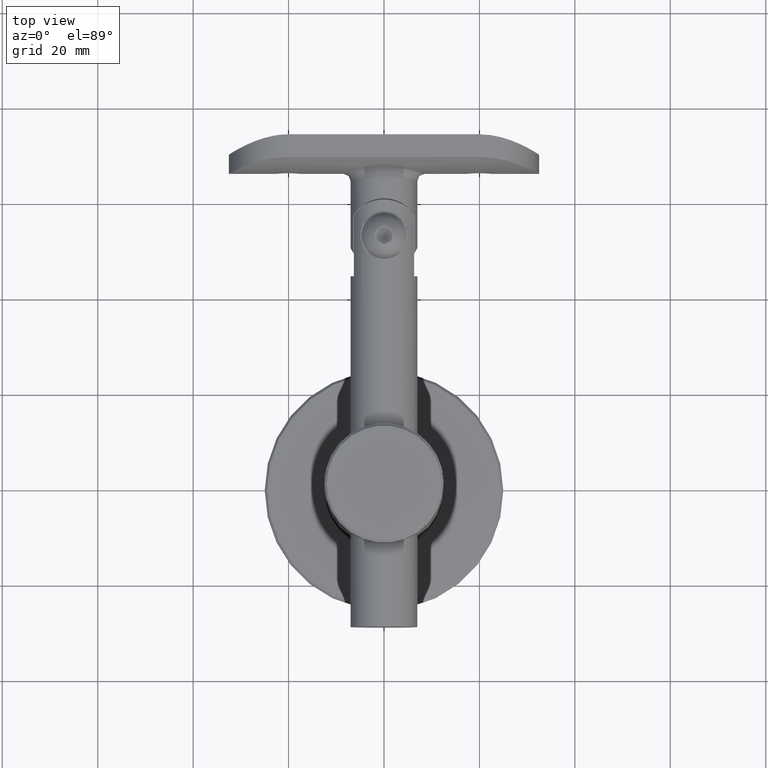
[diagram: clean part render]
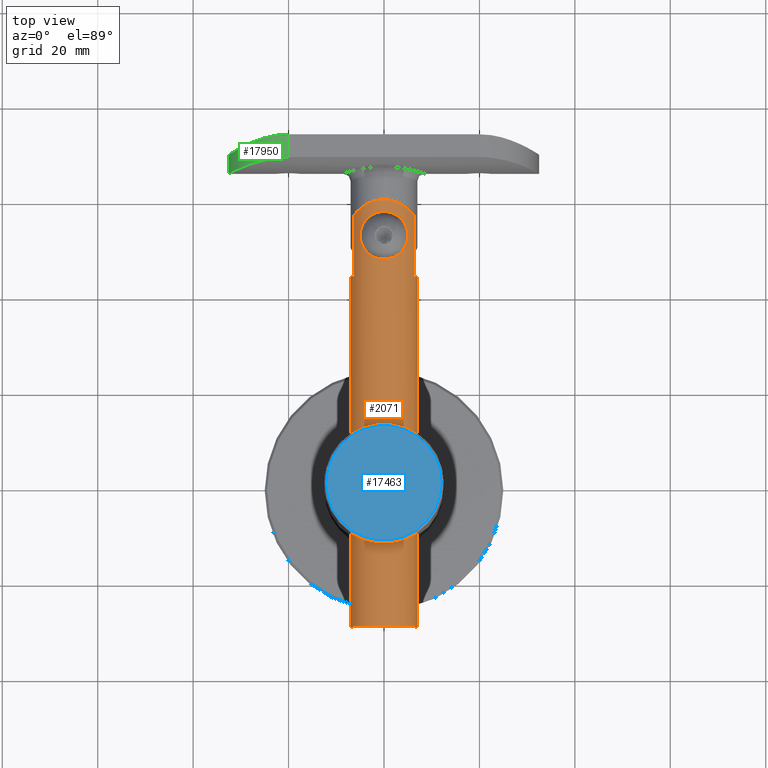
[diagram: same view with three faces highlighted in distinct colors, each labeled with its STEP entity id]
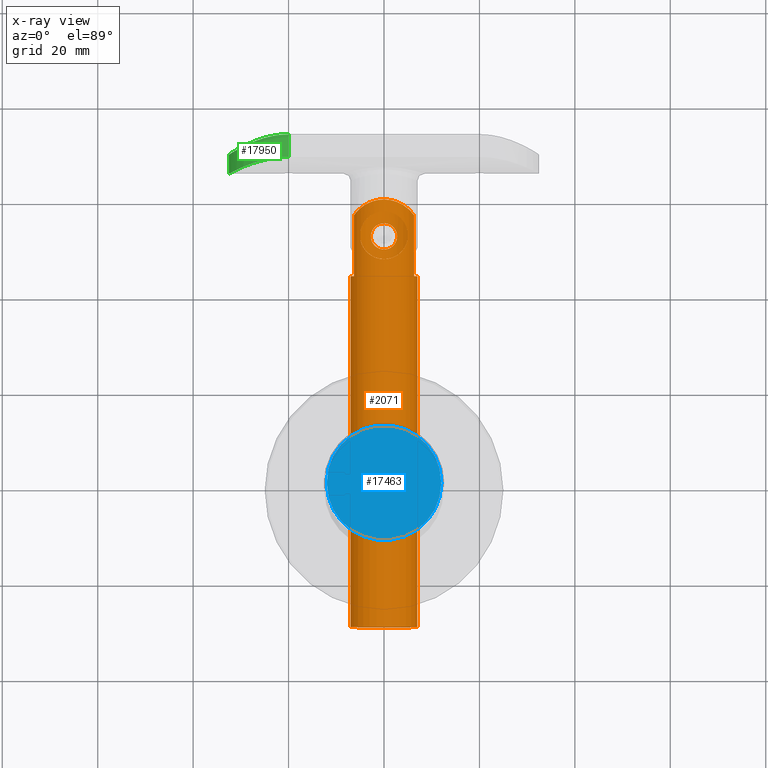
[diagram: x-ray of the same camera — body ghosted, the three highlighted faces saturated]
A machine part, top view with three faces highlighted in distinct colors.
The next image is the same camera in x-ray (body ghosted, the three faces saturated) — at least one of them is partly hidden behind the body in this view.
Their STEP definitions:

[orange] entity #2071 — the highlighted cylindrical surface (bore or boss wall) has radius 7 mm, axis along (-0, -1, -0).
#13 = CARTESIAN_POINT ( 'NONE',  ( -0.8934201700715390700, 84.60705001422599000, -6.944785510654292600 ) ) ;
#19 = CARTESIAN_POINT ( 'NONE',  ( -6.324555320336756400, 73.50000000000000000, -3.000000000000000000 ) ) ;
#34 = CARTESIAN_POINT ( 'NONE',  ( -3.614905331433776700, 78.53470914144381300, 5.998164343327515800 ) ) ;
#58 = CARTESIAN_POINT ( 'NONE',  ( -6.324555320336758200, 86.22911821679221600, -3.000000000000001800 ) ) ;
#86 = CARTESIAN_POINT ( 'NONE',  ( 1.678690237137759000, 79.81453093522000600, -6.797428388528597800 ) ) ;
#128 = CARTESIAN_POINT ( 'NONE',  ( -4.203674794888591700, 88.26828322984172800, -5.606578853813122300 ) ) ;
#270 = CARTESIAN_POINT ( 'NONE',  ( 1.760796681566904300, 89.29939510958931200, -6.777254525242627300 ) ) ;
#281 = CARTESIAN_POINT ( 'NONE',  ( -4.898979485566356700, 82.99999999999998600, 4.999999999999999100 ) ) ;
#347 = CARTESIAN_POINT ( 'NONE',  ( 3.614905331433776700, 85.46529085855618700, 5.998164343327515800 ) ) ;
#460 = EDGE_CURVE ( 'NONE', #10580, #18762, #19397, .T. ) ;
#555 = ORIENTED_EDGE ( 'NONE', *, *, #1925, .T. ) ;
#557 = CARTESIAN_POINT ( 'NONE',  ( -0.3075841348478602900, 86.99946705965081200, 6.999619328607963100 ) ) ;
#709 = DIRECTION ( 'NONE',  ( -0.0000000000000000000, -1.000000000000000000, -0.0000000000000000000 ) ) ;
#745 = ORIENTED_EDGE ( 'NONE', *, *, #18040, .T. ) ;
#782 = EDGE_CURVE ( 'NONE', #6335, #11942, #6940, .T. ) ;
#791 = CARTESIAN_POINT ( 'NONE',  ( 6.324555320336752800, 73.50000000000000000, 2.999999999999998200 ) ) ;
#1006 = CARTESIAN_POINT ( 'NONE',  ( 4.199224853540028100, 88.27119367124032600, 5.609963623605692000 ) ) ;
#1038 = B_SPLINE_CURVE_WITH_KNOTS ( 'NONE', 3,
 ( #6231, #6300, #11105, #12897, #13, #20592, #17443, #12831, #7785, #17512, #9544, #20665, #20734, #1544, #3237, #14444, #7923, #12771, #4752, #16040, #15906, #6370, #4826, #11302, #1475, #17584, #6444, #9693, #18997, #14509, #12633, #14243, #3304, #4683, #17662, #8068, #12701, #86, #11032, #9406, #7857, #3099, #1405, #3023, #4616, #16250, #14788, #13040, #18018, #2035, #6661, #9756, #3662, #9965, #16314, #6796, #9821, #11507, #1890, #11440, #5102, #17881 ),
 .UNSPECIFIED., .T., .F.,
 ( 4, 2, 2, 2, 2, 2, 2, 2, 2, 2, 2, 2, 2, 2, 2, 2, 2, 2, 2, 2, 2, 2, 2, 2, 2, 2, 2, 2, 2, 2, 4 ),
 ( 0.0000000000000000000, 0.0005426679904109459000, 0.001085335980821891800, 0.001628003971232837700, 0.002170671961643783600, 0.003256007942465674500, 0.003798675932876619800, 0.004341343923287565400, 0.004884011913698511600, 0.005426679904109456800, 0.005969347894520402900, 0.006512015884931349000, 0.007054683875342295100, 0.007597351865753240400, 0.008140019856164186500, 0.008682687846575132600, 0.009225355836986078700, 0.009768023827397024800, 0.01031069181780797100, 0.01085335980821891500, 0.01139602779862986100, 0.01193869578904080800, 0.01248136377945175400, 0.01302403176986270000, 0.01356669976027364600, 0.01410936775068459200, 0.01465203574109553800, 0.01519470373150648200, 0.01573737172191742900, 0.01628003971232837600, 0.01736537569315026900 ),
 .UNSPECIFIED. ) ;
#1197 = ORIENTED_EDGE ( 'NONE', *, *, #782, .T. ) ;
#1209 = CARTESIAN_POINT ( 'NONE',  ( 6.060285792426122400, 86.60226917371140600, 3.557129082916704800 ) ) ;
#1349 = CARTESIAN_POINT ( 'NONE',  ( -1.769915728430260700, 89.30326962258362800, 6.781712032869050300 ) ) ;
#1359 = CARTESIAN_POINT ( 'NONE',  ( 6.324555320336757300, 92.00000000000000000, 3.000000000000000000 ) ) ;
#1405 = CARTESIAN_POINT ( 'NONE',  ( 2.468051694380037500, 80.77378078093845200, -6.550897895195269900 ) ) ;
#1411 = CARTESIAN_POINT ( 'NONE',  ( -5.529349794834750800, 87.18737894610852400, 4.303714351459682100 ) ) ;
#1435 = CARTESIAN_POINT ( 'NONE',  ( 0.0000000000000000000, 0.0000000000000000000, 6.999999999999999100 ) ) ;
#1475 = CARTESIAN_POINT ( 'NONE',  ( -1.682963870502190100, 79.81777303405209500, -6.796379002353479100 ) ) ;
#1480 = CARTESIAN_POINT ( 'NONE',  ( -6.324555320336759900, 86.22911821679221600, 2.999999999999997300 ) ) ;
#1544 = CARTESIAN_POINT ( 'NONE',  ( -2.731778752556962300, 82.36440252293115800, -6.445066868859143500 ) ) ;
#1595 = CARTESIAN_POINT ( 'NONE',  ( -1.795446388815784300, 89.29703466220864500, -6.774766342545606600 ) ) ;
#1622 = CARTESIAN_POINT ( 'NONE',  ( -6.192264615893467500, 86.41591388462727300, 3.278893292872632000 ) ) ;
#1635 = CARTESIAN_POINT ( 'NONE',  ( -3.973478704353192700, 78.95250130833937900, 5.766886771113650700 ) ) ;
#1721 = CARTESIAN_POINT ( 'NONE',  ( 6.324555320336758200, 86.22911821679221600, -3.000000000000001800 ) ) ;
#1772 = CARTESIAN_POINT ( 'NONE',  ( -4.548511329816598400, 79.90433365806386200, 5.322635898918067100 ) ) ;
#1790 = DIRECTION ( 'NONE',  ( -0.0000000000000000000, -1.000000000000000000, -0.0000000000000000000 ) ) ;
#1864 = CARTESIAN_POINT ( 'NONE',  ( 2.436208839625645200, 89.11537843722753400, -6.571796790168397400 ) ) ;
#1878 = CARTESIAN_POINT ( 'NONE',  ( 4.421977009742368700, 84.35014470591239900, 5.429462876628999600 ) ) ;
#1890 = CARTESIAN_POINT ( 'NONE',  ( 1.228763892797353000, 84.46688112587470700, -6.893385524380597900 ) ) ;
#1925 = EDGE_CURVE ( 'NONE', #20475, #20475, #1038, .T. ) ;
#2035 = CARTESIAN_POINT ( 'NONE',  ( 2.661337149544327200, 82.71628721917572600, -6.474471173527214200 ) ) ;
#2071 = ADVANCED_FACE ( 'NONE', ( #20441, #2400, #18949, #16178 ), #8671, .T. ) ;
#2095 = CARTESIAN_POINT ( 'NONE',  ( 1.172527317746819200, 86.86969451860673500, 6.907427810759569000 ) ) ;
#2168 = CARTESIAN_POINT ( 'NONE',  ( 2.004173547763659100, 86.58994197997024900, 6.712845311740686300 ) ) ;
#2201 = ORIENTED_EDGE ( 'NONE', *, *, #10532, .T. ) ;
#2400 = FACE_BOUND ( 'NONE', #17536, .T. ) ;
#2623 = CARTESIAN_POINT ( 'NONE',  ( 3.372654824286463300, 88.73545560400940200, 6.143196644362327600 ) ) ;
#2822 = B_SPLINE_CURVE_WITH_KNOTS ( 'NONE', 3,
 ( #15994, #9919, #11252, #3472, #4983, #19436, #14396, #11526, #17831, #11460, #6682, #5051, #6393, #8019, #16269, #17901, #8295, #19364, #17757, #11392, #13131, #19224, #19502, #9647, #34, #1635, #14600, #12849, #1772, #3257, #14460, #4851 ),
 .UNSPECIFIED., .F., .F.,
 ( 4, 2, 2, 2, 2, 2, 2, 2, 2, 2, 2, 2, 2, 2, 2, 4 ),
 ( 0.0000000000000000000, 0.0008903713401082948700, 0.001780742680216589700, 0.002671114020324884600, 0.003561485360433179500, 0.005342228040649792600, 0.006232599380758099700, 0.007122970720866405800, 0.008013342060974712800, 0.008903713401083018100, 0.009794084741191323400, 0.01068445608129962900, 0.01157482742140793600, 0.01246519876151624300, 0.01335557010162454600, 0.01424594144173285300 ),
 .UNSPECIFIED. ) ;
#2887 = CARTESIAN_POINT ( 'NONE',  ( 6.324555320336758200, 86.22911821679221600, -3.000000000000001800 ) ) ;
#2899 = CARTESIAN_POINT ( 'NONE',  ( -3.367225610241182400, 88.73808392569647200, 6.146183844426517800 ) ) ;
#3023 = CARTESIAN_POINT ( 'NONE',  ( 2.606819564357611100, 81.10591695116706000, -6.496924977117127600 ) ) ;
#3099 = CARTESIAN_POINT ( 'NONE',  ( 2.381797171614288300, 80.61394548347900000, -6.583163461929014900 ) ) ;
#3105 = CARTESIAN_POINT ( 'NONE',  ( 0.7289414277629956400, 89.47383732815151800, 6.971063946329146600 ) ) ;
#3195 = B_SPLINE_CURVE_WITH_KNOTS ( 'NONE', 3,
 ( #281, #19753, #8473, #3650, #16304, #5364, #19683, #8541, #9951, #14848, #14702, #10170, #13166, #6715, #557, #10097, #5087, #2095, #14924, #2168, #14983, #11497, #18004, #6783, #347, #6650, #11562, #1878, #13094, #3572, #14775, #18415 ),
 .UNSPECIFIED., .F., .F.,
 ( 4, 2, 2, 2, 2, 2, 2, 2, 2, 2, 2, 2, 2, 2, 2, 4 ),
 ( 0.0000000000000000000, 0.0008903713401082948700, 0.001780742680216589700, 0.002671114020324884600, 0.003561485360433179500, 0.005342228040649792600, 0.006232599380758099700, 0.007122970720866405800, 0.008013342060974712800, 0.008903713401083018100, 0.009794084741191323400, 0.01068445608129962900, 0.01157482742140793600, 0.01246519876151624300, 0.01335557010162454600, 0.01424594144173285300 ),
 .UNSPECIFIED. ) ;
#3210 = CARTESIAN_POINT ( 'NONE',  ( -5.135444140045439800, 87.56080041834199800, -4.766783065597560500 ) ) ;
#3237 = CARTESIAN_POINT ( 'NONE',  ( -2.749773621201270700, 82.18479643699988900, -6.437293304769149800 ) ) ;
#3257 = CARTESIAN_POINT ( 'NONE',  ( -4.756686990366636900, 80.43325126141081700, 5.137444608518720200 ) ) ;
#3282 = CARTESIAN_POINT ( 'NONE',  ( -3.668769152028241700, 88.58366892340734500, -5.970321694375610600 ) ) ;
#3304 = CARTESIAN_POINT ( 'NONE',  ( 0.3605394467173384500, 79.26768030572824800, -6.992995863867172100 ) ) ;
#3355 = CARTESIAN_POINT ( 'NONE',  ( -3.379994369966394800, 88.73189524316750000, -6.139149664387119300 ) ) ;
#3426 = CARTESIAN_POINT ( 'NONE',  ( 1.239901295625974700, 89.40224497469303300, -6.891624710215854300 ) ) ;
#3472 = CARTESIAN_POINT ( 'NONE',  ( 4.550541201749037900, 79.90900948106927600, 5.320870568143504000 ) ) ;
#3572 = CARTESIAN_POINT ( 'NONE',  ( 4.756686990366636900, 83.56674873858914100, 5.137444608518720200 ) ) ;
#3650 = CARTESIAN_POINT ( 'NONE',  ( -4.550541201749037900, 84.09099051893072400, 5.320870568143504000 ) ) ;
#3662 = CARTESIAN_POINT ( 'NONE',  ( 2.384541006121612100, 83.38146233214060000, -6.582176121886735000 ) ) ;
#3732 = DIRECTION ( 'NONE',  ( 0.0000000000000000000, 0.0000000000000000000, -1.000000000000000000 ) ) ;
#4208 = DIRECTION ( 'NONE',  ( -0.0000000000000000000, -1.000000000000000000, -0.0000000000000000000 ) ) ;
#4446 = CARTESIAN_POINT ( 'NONE',  ( 0.0000000000000000000, 73.50000000000000000, 0.0000000000000000000 ) ) ;
#4489 = CARTESIAN_POINT ( 'NONE',  ( -0.3541687347409526700, 89.49402537663688400, 6.993387205265690000 ) ) ;
#4558 = CARTESIAN_POINT ( 'NONE',  ( -0.7158752425265080300, 89.46899521724175500, 6.965660251015655100 ) ) ;
#4616 = CARTESIAN_POINT ( 'NONE',  ( 2.659500794431466400, 81.27737422920485200, -6.475226904084494500 ) ) ;
#4683 = CARTESIAN_POINT ( 'NONE',  ( 0.7171364192753255700, 79.33893349190712700, -6.965464464115196800 ) ) ;
#4691 = CARTESIAN_POINT ( 'NONE',  ( -4.927650716901704100, 87.75715858298261200, 5.010082225133492000 ) ) ;
#4723 = ORIENTED_EDGE ( 'NONE', *, *, #5554, .T. ) ;
#4752 = CARTESIAN_POINT ( 'NONE',  ( -2.608676248056745800, 81.11103648196828400, -6.496184139014581600 ) ) ;
#4757 = CARTESIAN_POINT ( 'NONE',  ( -4.898979485566356700, 82.99999999999998600, 4.999999999999999100 ) ) ;
#4796 = CARTESIAN_POINT ( 'NONE',  ( 5.729747912702356900, 86.99779505689156200, -4.068740834130320400 ) ) ;
#4826 = CARTESIAN_POINT ( 'NONE',  ( -2.071457664861658700, 80.18251468045402000, -6.687766071139152200 ) ) ;
#4851 = CARTESIAN_POINT ( 'NONE',  ( -4.898979485566356700, 81.00000000000001400, 4.999999999999999100 ) ) ;
#4871 = CARTESIAN_POINT ( 'NONE',  ( -2.458491548171999800, 89.10779717274523600, -6.563299935152077300 ) ) ;
#4906 = VERTEX_POINT ( 'NONE', #1435 ) ;
#4983 = CARTESIAN_POINT ( 'NONE',  ( 4.426164966053143200, 79.65756947946091800, 5.426071599279979700 ) ) ;
#5008 = CARTESIAN_POINT ( 'NONE',  ( -1.445460648942785700, 89.37236608133154900, -6.858465558885002100 ) ) ;
#5051 = CARTESIAN_POINT ( 'NONE',  ( 1.475203136158573800, 77.21357541974926200, 6.848675093871656300 ) ) ;
#5075 = CARTESIAN_POINT ( 'NONE',  ( -0.7389411897558341200, 89.47293901850568400, -6.970069743419795600 ) ) ;
#5087 = CARTESIAN_POINT ( 'NONE',  ( 0.5860100824662596300, 86.97446853429174500, 6.981688295460141800 ) ) ;
#5102 = CARTESIAN_POINT ( 'NONE',  ( 0.3672442640980363400, 84.75000000000002800, -6.999999999999999100 ) ) ;
#5329 = ORIENTED_EDGE ( 'NONE', *, *, #11606, .T. ) ;
#5364 = CARTESIAN_POINT ( 'NONE',  ( -4.137930488203155100, 84.82054043138333600, 5.648957477449073400 ) ) ;
#5542 = DIRECTION ( 'NONE',  ( 0.0000000000000000000, 1.000000000000000000, 0.0000000000000000000 ) ) ;
#5554 = EDGE_CURVE ( 'NONE', #14884, #6335, #11397, .T. ) ;
#5778 = LINE ( 'NONE', #1359, #10079 ) ;
#5797 = CIRCLE ( 'NONE', #11316, 6.999999999999999100 ) ;
#5892 = CARTESIAN_POINT ( 'NONE',  ( 2.766659901701651300, 88.99686025446094100, 6.438886438150894300 ) ) ;
#5915 = DIRECTION ( 'NONE',  ( 0.0000000000000000000, 0.0000000000000000000, -1.000000000000000000 ) ) ;
#6231 = CARTESIAN_POINT ( 'NONE',  ( -2.710505431213761100E-017, 84.75000000000001400, -6.999999999999999100 ) ) ;
#6300 = CARTESIAN_POINT ( 'NONE',  ( -0.1836221320490178400, 84.75000000000001400, -7.000000000000000000 ) ) ;
#6335 = VERTEX_POINT ( 'NONE', #13882 ) ;
#6370 = CARTESIAN_POINT ( 'NONE',  ( -2.186283639877384400, 80.32238253141682100, -6.650650602407702100 ) ) ;
#6392 = EDGE_CURVE ( 'NONE', #18762, #14011, #14380, .T. ) ;
#6393 = CARTESIAN_POINT ( 'NONE',  ( 1.192239523120524100, 77.13522546663585900, 6.903956519540248100 ) ) ;
#6444 = CARTESIAN_POINT ( 'NONE',  ( -1.225914254322210800, 79.53186497473907900, -6.893842360817259900 ) ) ;
#6564 = CARTESIAN_POINT ( 'NONE',  ( -5.734102128558198800, 86.99264483334378900, -4.062031759999328500 ) ) ;
#6636 = CARTESIAN_POINT ( 'NONE',  ( -0.3800433329546377700, 89.49927244464906600, -6.999194491946672000 ) ) ;
#6650 = CARTESIAN_POINT ( 'NONE',  ( 3.973478704353192700, 85.04749869166062100, 5.766886771113650700 ) ) ;
#6651 = CARTESIAN_POINT ( 'NONE',  ( -4.898979485566356700, 92.00000000000000000, 4.999999999999999100 ) ) ;
#6661 = CARTESIAN_POINT ( 'NONE',  ( 2.608172707936179600, 82.89000651806121300, -6.496375528918295400 ) ) ;
#6682 = CARTESIAN_POINT ( 'NONE',  ( 2.299731958036056700, 77.52165531221291400, 6.635776688420710600 ) ) ;
#6697 = CARTESIAN_POINT ( 'NONE',  ( -6.324555320336757300, 92.00000000000000000, 3.000000000000000000 ) ) ;
#6704 = LINE ( 'NONE', #13530, #16729 ) ;
#6712 = VERTEX_POINT ( 'NONE', #16829 ) ;
#6715 = CARTESIAN_POINT ( 'NONE',  ( -0.6104354240936427100, 86.97140170716174600, 6.979499931743287500 ) ) ;
#6783 = CARTESIAN_POINT ( 'NONE',  ( 3.415837379854716400, 85.66190556333231100, 6.114725322684308600 ) ) ;
#6792 = LINE ( 'NONE', #11951, #17559 ) ;
#6796 = CARTESIAN_POINT ( 'NONE',  ( 1.820941083946231900, 84.06845246183714000, -6.760279309565477800 ) ) ;
#6940 = CIRCLE ( 'NONE', #9881, 6.999999999999999100 ) ;
#7196 = EDGE_LOOP ( 'NONE', ( #555 ) ) ;
#7557 = ORIENTED_EDGE ( 'NONE', *, *, #9701, .T. ) ;
#7785 = CARTESIAN_POINT ( 'NONE',  ( -1.819711518684171700, 84.06945046778039900, -6.760598663414708800 ) ) ;
#7790 = CARTESIAN_POINT ( 'NONE',  ( 0.0000000000000000000, 0.0000000000000000000, 0.0000000000000000000 ) ) ;
#7857 = CARTESIAN_POINT ( 'NONE',  ( 2.183511112423000900, 80.31881467071492900, -6.651562083835068000 ) ) ;
#7923 = CARTESIAN_POINT ( 'NONE',  ( -2.732024789745296700, 81.63780269255168800, -6.444960454782098200 ) ) ;
#7929 = CARTESIAN_POINT ( 'NONE',  ( -0.8945440000771623900, 89.45026496198413200, 6.944906109251775200 ) ) ;
#8019 = CARTESIAN_POINT ( 'NONE',  ( 0.6104354240936427100, 77.02859829283826800, 6.979499931743287500 ) ) ;
#8068 = CARTESIAN_POINT ( 'NONE',  ( 1.222102748769696500, 79.52989224514423900, -6.894547964581978900 ) ) ;
#8089 = CARTESIAN_POINT ( 'NONE',  ( 0.0000000000000000000, 73.50000000000000000, 0.0000000000000000000 ) ) ;
#8180 = CARTESIAN_POINT ( 'NONE',  ( 0.7107497837383238700, 89.47555294120456900, -6.972963517925947500 ) ) ;
#8254 = ORIENTED_EDGE ( 'NONE', *, *, #11886, .T. ) ;
#8295 = CARTESIAN_POINT ( 'NONE',  ( -0.5860100824662596300, 77.02553146570822700, 6.981688295460141800 ) ) ;
#8458 = VERTEX_POINT ( 'NONE', #20143 ) ;
#8473 = CARTESIAN_POINT ( 'NONE',  ( -4.756956418564139500, 83.56557727722245900, 5.137164048736693200 ) ) ;
#8541 = CARTESIAN_POINT ( 'NONE',  ( -3.619266846054845400, 85.46069261283707900, 5.995511750858710800 ) ) ;
#8671 = CYLINDRICAL_SURFACE ( 'NONE', #18750, 6.999999999999999100 ) ;
#8865 = CARTESIAN_POINT ( 'NONE',  ( -6.324555320336759900, 86.22911821679221600, 2.999999999999997300 ) ) ;
#8960 = ORIENTED_EDGE ( 'NONE', *, *, #11599, .T. ) ;
#9143 = CARTESIAN_POINT ( 'NONE',  ( 5.131966938833488500, 87.56392065475355900, 4.770596641733377800 ) ) ;
#9198 = CARTESIAN_POINT ( 'NONE',  ( -4.898979485566356700, 81.00000000000001400, 4.999999999999999100 ) ) ;
#9209 = CARTESIAN_POINT ( 'NONE',  ( 4.448706863809171400, 88.10271647986050400, 5.413617281898848600 ) ) ;
#9223 = ORIENTED_EDGE ( 'NONE', *, *, #15645, .T. ) ;
#9406 = CARTESIAN_POINT ( 'NONE',  ( 2.070740906206229000, 80.18153847660039400, -6.688013981450927400 ) ) ;
#9544 = CARTESIAN_POINT ( 'NONE',  ( -2.399702794726680000, 83.38986420423108800, -6.577483290828721100 ) ) ;
#9552 = CARTESIAN_POINT ( 'NONE',  ( -6.043741256792860600, 86.60800346316200700, 3.544871614369401700 ) ) ;
#9587 = LINE ( 'NONE', #6651, #11841 ) ;
#9630 = VECTOR ( 'NONE', #1790, 1000.000000000000000 ) ;
#9647 = CARTESIAN_POINT ( 'NONE',  ( -3.415837379854716400, 78.33809443666768900, 6.114725322684308600 ) ) ;
#9693 = CARTESIAN_POINT ( 'NONE',  ( -0.8955389252712402400, 79.39374477550752800, -6.944489778815494700 ) ) ;
#9701 = EDGE_CURVE ( 'NONE', #4906, #4906, #5797, .T. ) ;
#9733 = CARTESIAN_POINT ( 'NONE',  ( 3.652800932876794100, 88.59232238610593400, -5.980227722753383500 ) ) ;
#9756 = CARTESIAN_POINT ( 'NONE',  ( 2.470457099791763900, 83.22127728002408300, -6.549984855344327200 ) ) ;
#9821 = CARTESIAN_POINT ( 'NONE',  ( 1.681304899442013900, 84.18343453870795700, -6.796773996101039800 ) ) ;
#9881 = AXIS2_PLACEMENT_3D ( 'NONE', #4446, #15602, #5915 ) ;
#9916 = VERTEX_POINT ( 'NONE', #4757 ) ;
#9919 = CARTESIAN_POINT ( 'NONE',  ( 4.839633333549911300, 80.70926441872416000, 5.058147116255173400 ) ) ;
#9941 = EDGE_CURVE ( 'NONE', #9916, #6712, #3195, .T. ) ;
#9951 = CARTESIAN_POINT ( 'NONE',  ( -3.421553473819725100, 85.65657538789591300, 6.111525691552757600 ) ) ;
#9965 = CARTESIAN_POINT ( 'NONE',  ( 2.185565648149782700, 83.67862347851638600, -6.650893256325724100 ) ) ;
#10079 = VECTOR ( 'NONE', #13052, 1000.000000000000000 ) ;
#10097 = CARTESIAN_POINT ( 'NONE',  ( 0.2900063760935456800, 87.00051749145713100, 7.000369636473303500 ) ) ;
#10170 = CARTESIAN_POINT ( 'NONE',  ( -1.475203136158573800, 86.78642458025078100, 6.848675093871656300 ) ) ;
#10532 = EDGE_CURVE ( 'NONE', #11942, #10580, #6792, .T. ) ;
#10580 = VERTEX_POINT ( 'NONE', #18326 ) ;
#10670 = B_SPLINE_CURVE_WITH_KNOTS ( 'NONE', 3,
 ( #17251, #1209, #20195, #9143, #10766, #9209, #1006, #13825, #2623, #5892, #10699, #13896, #12639, #3105, #14177, #17521, #4489, #4558, #7929, #14313, #1349, #19142, #11238, #2899, #14106, #15844, #4691, #1411, #11174, #9552, #1622, #1480 ),
 .UNSPECIFIED., .F., .F.,
 ( 4, 2, 2, 2, 2, 2, 2, 2, 2, 2, 2, 2, 2, 2, 2, 4 ),
 ( 0.01528008297406659900, 0.01744185764059446100, 0.01852274497385838400, 0.01960363230712230300, 0.02068451964038622200, 0.02176540697365014100, 0.02284629430691406300, 0.02392718164017798600, 0.02446762530680994500, 0.02500806897344190500, 0.02608895630670581700, 0.02716984363996973600, 0.02825073097323365200, 0.03041250563976150000, 0.03149339297302543300, 0.03257428030628935900 ),
 .UNSPECIFIED. ) ;
#10699 = CARTESIAN_POINT ( 'NONE',  ( 2.449703906055181100, 89.11077870388302800, 6.566641529540416600 ) ) ;
#10719 = CARTESIAN_POINT ( 'NONE',  ( 0.0000000000000000000, 84.75000000000000000, -6.999999999999999100 ) ) ;
#10766 = CARTESIAN_POINT ( 'NONE',  ( 4.914746297437768700, 87.74943899589085600, 4.994348172364280600 ) ) ;
#10843 = DIRECTION ( 'NONE',  ( 0.0000000000000000000, 1.000000000000000000, 0.0000000000000000000 ) ) ;
#11032 = CARTESIAN_POINT ( 'NONE',  ( 1.816577320195462000, 79.92760596109909000, -6.761475116900923500 ) ) ;
#11105 = CARTESIAN_POINT ( 'NONE',  ( -0.3638283434192142200, 84.73179643663236500, -6.992791983921315500 ) ) ;
#11174 = CARTESIAN_POINT ( 'NONE',  ( -5.712705369129201600, 86.99328173882317100, 4.056836268195262100 ) ) ;
#11238 = CARTESIAN_POINT ( 'NONE',  ( -2.760645904571037400, 88.99916267250336000, 6.441476410678595800 ) ) ;
#11252 = CARTESIAN_POINT ( 'NONE',  ( 4.756956418564139500, 80.43442272277758300, 5.137164048736693200 ) ) ;
#11302 = CARTESIAN_POINT ( 'NONE',  ( -1.819848553133532200, 79.93061821121932600, -6.760569733628367200 ) ) ;
#11316 = AXIS2_PLACEMENT_3D ( 'NONE', #7790, #10843, #12502 ) ;
#11343 = CARTESIAN_POINT ( 'NONE',  ( 2.754659698250624200, 89.00145416269265300, -6.444054170888958500 ) ) ;
#11392 = CARTESIAN_POINT ( 'NONE',  ( -2.004173547763659100, 77.41005802002975100, 6.712845311740686300 ) ) ;
#11397 = LINE ( 'NONE', #6697, #9630 ) ;
#11440 = CARTESIAN_POINT ( 'NONE',  ( 0.7270690641455844800, 84.67681216182973000, -6.970356471794839400 ) ) ;
#11460 = CARTESIAN_POINT ( 'NONE',  ( 2.780641105782204500, 77.80734904778249500, 6.441982059250345400 ) ) ;
#11497 = CARTESIAN_POINT ( 'NONE',  ( 2.759197394509893500, 86.17946285366929300, 6.438663957947450300 ) ) ;
#11507 = CARTESIAN_POINT ( 'NONE',  ( 1.385854863368648000, 84.38192754872775900, -6.863113667763378200 ) ) ;
#11526 = CARTESIAN_POINT ( 'NONE',  ( 3.619266846054845400, 78.53930738716287900, 5.995511750858710800 ) ) ;
#11562 = CARTESIAN_POINT ( 'NONE',  ( 4.134643339375577000, 84.82520534998342000, 5.651342518334878700 ) ) ;
#11599 = EDGE_CURVE ( 'NONE', #8458, #14420, #2822, .T. ) ;
#11606 = EDGE_CURVE ( 'NONE', #14011, #18695, #20323, .T. ) ;
#11841 = VECTOR ( 'NONE', #13378, 1000.000000000000000 ) ;
#11886 = EDGE_CURVE ( 'NONE', #19739, #14884, #10670, .T. ) ;
#11942 = VERTEX_POINT ( 'NONE', #19 ) ;
#11951 = CARTESIAN_POINT ( 'NONE',  ( -6.324555320336758200, 92.00000000000000000, -2.999999999999998200 ) ) ;
#12502 = DIRECTION ( 'NONE',  ( 0.0000000000000000000, 0.0000000000000000000, 1.000000000000000000 ) ) ;
#12633 = CARTESIAN_POINT ( 'NONE',  ( -0.1843727596880558600, 79.25023391884023700, -6.999908103376206700 ) ) ;
#12639 = CARTESIAN_POINT ( 'NONE',  ( 1.433374368311944900, 89.37459550383636000, 6.860942068636460600 ) ) ;
#12701 = CARTESIAN_POINT ( 'NONE',  ( 1.382498685967689300, 79.61610123355254100, -6.863798583345361400 ) ) ;
#12771 = CARTESIAN_POINT ( 'NONE',  ( -2.661148324266164900, 81.28345555786052000, -6.474547421383462600 ) ) ;
#12808 = CARTESIAN_POINT ( 'NONE',  ( 4.462071165065935900, 88.11739680563549400, -5.432700433738454600 ) ) ;
#12831 = CARTESIAN_POINT ( 'NONE',  ( -1.680462442602407500, 84.18417676817567500, -6.797005821099865000 ) ) ;
#12849 = CARTESIAN_POINT ( 'NONE',  ( -4.421977009742368700, 79.64985529408764400, 5.429462876628999600 ) ) ;
#12897 = CARTESIAN_POINT ( 'NONE',  ( -0.7177927998739558300, 84.66079994195757800, -6.965363184380154700 ) ) ;
#12919 = DIRECTION ( 'NONE',  ( -0.0000000000000000000, -1.000000000000000000, -0.0000000000000000000 ) ) ;
#13012 = CARTESIAN_POINT ( 'NONE',  ( 0.3497671856842480800, 89.50069798612612700, -7.000772770690280000 ) ) ;
#13040 = CARTESIAN_POINT ( 'NONE',  ( 2.750190343333264400, 82.17835287948736300, -6.437115279298305700 ) ) ;
#13052 = DIRECTION ( 'NONE',  ( 0.0000000000000000000, 1.000000000000000000, 0.0000000000000000000 ) ) ;
#13060 = DIRECTION ( 'NONE',  ( 0.0000000000000000000, 0.0000000000000000000, -1.000000000000000000 ) ) ;
#13081 = CARTESIAN_POINT ( 'NONE',  ( -2.774749103926561000, 88.99375527870925900, -6.435393379818186200 ) ) ;
#13082 = EDGE_LOOP ( 'NONE', ( #7557 ) ) ;
#13094 = CARTESIAN_POINT ( 'NONE',  ( 4.548511329816598400, 84.09566634193613800, 5.322635898918067100 ) ) ;
#13131 = CARTESIAN_POINT ( 'NONE',  ( -2.266863554783705500, 77.53430748583549800, 6.628038431484470500 ) ) ;
#13166 = CARTESIAN_POINT ( 'NONE',  ( -1.192239523120524100, 86.86477453336415500, 6.903956519540248100 ) ) ;
#13178 = DIRECTION ( 'NONE',  ( -0.0000000000000000000, -1.000000000000000000, -0.0000000000000000000 ) ) ;
#13378 = DIRECTION ( 'NONE',  ( 0.0000000000000000000, 1.000000000000000000, 0.0000000000000000000 ) ) ;
#13530 = CARTESIAN_POINT ( 'NONE',  ( 4.898979485566356700, 92.00000000000000000, 4.999999999999999100 ) ) ;
#13809 = CARTESIAN_POINT ( 'NONE',  ( 6.324555320336758200, 92.00000000000000000, -2.999999999999998200 ) ) ;
#13825 = CARTESIAN_POINT ( 'NONE',  ( 3.662519443295178000, 88.58706132749280500, 5.974205600433597500 ) ) ;
#13882 = CARTESIAN_POINT ( 'NONE',  ( -6.324555320336757300, 73.50000000000000000, 2.999999999999998200 ) ) ;
#13896 = CARTESIAN_POINT ( 'NONE',  ( 1.784310280726326500, 89.29972510605350100, 6.777762685940048800 ) ) ;
#14010 = AXIS2_PLACEMENT_3D ( 'NONE', #8089, #12919, #13060 ) ;
#14011 = VERTEX_POINT ( 'NONE', #18702 ) ;
#14106 = CARTESIAN_POINT ( 'NONE',  ( -3.657235530305782400, 88.58994445630666800, 5.977508155596614100 ) ) ;
#14177 = CARTESIAN_POINT ( 'NONE',  ( 0.3720041140973574500, 89.49952115337065100, 6.999469848273423400 ) ) ;
#14243 = CARTESIAN_POINT ( 'NONE',  ( 0.1773274584154867500, 79.24977059354976900, -7.000090123899746600 ) ) ;
#14313 = CARTESIAN_POINT ( 'NONE',  ( -1.424298548345202900, 89.37633801090135000, 6.862877893622210100 ) ) ;
#14380 = LINE ( 'NONE', #13809, #20379 ) ;
#14396 = CARTESIAN_POINT ( 'NONE',  ( 3.976657288431762800, 78.95669872114841300, 5.764672624529448600 ) ) ;
#14417 = CARTESIAN_POINT ( 'NONE',  ( -6.060553476826094700, 86.60189120092432800, -3.556564754651358100 ) ) ;
#14420 = VERTEX_POINT ( 'NONE', #9198 ) ;
#14444 = CARTESIAN_POINT ( 'NONE',  ( -2.750222174978944200, 81.82200371004913100, -6.437101680704922800 ) ) ;
#14460 = CARTESIAN_POINT ( 'NONE',  ( -4.839624708239068000, 80.70922216350325600, 5.058155567299345500 ) ) ;
#14509 = CARTESIAN_POINT ( 'NONE',  ( -0.3660169853830148600, 79.26836406271837600, -6.992726396043567900 ) ) ;
#14600 = CARTESIAN_POINT ( 'NONE',  ( -4.134643339375577000, 79.17479465001653700, 5.651342518334878700 ) ) ;
#14691 = CARTESIAN_POINT ( 'NONE',  ( -4.452603804045240900, 88.09997191179030600, -5.410397169680552800 ) ) ;
#14692 = EDGE_CURVE ( 'NONE', #14420, #9916, #9587, .T. ) ;
#14702 = CARTESIAN_POINT ( 'NONE',  ( -2.299731958036056700, 86.47834468778707200, 6.635776688420710600 ) ) ;
#14775 = CARTESIAN_POINT ( 'NONE',  ( 4.839624708239068000, 83.29077783649673000, 5.058155567299345500 ) ) ;
#14788 = CARTESIAN_POINT ( 'NONE',  ( 2.749806574986836300, 81.81582488131091700, -6.437279226792822100 ) ) ;
#14848 = CARTESIAN_POINT ( 'NONE',  ( -2.780641105782204500, 86.19265095221747700, 6.441982059250345400 ) ) ;
#14884 = VERTEX_POINT ( 'NONE', #8865 ) ;
#14924 = CARTESIAN_POINT ( 'NONE',  ( 1.459497406017922000, 86.79104856068855200, 6.851924628215162900 ) ) ;
#14983 = CARTESIAN_POINT ( 'NONE',  ( 2.266863554783705500, 86.46569251416451600, 6.628038431484470500 ) ) ;
#15515 = CARTESIAN_POINT ( 'NONE',  ( 6.324555320336759000, 86.22911821679221600, 2.999999999999997300 ) ) ;
#15602 = DIRECTION ( 'NONE',  ( -0.0000000000000000000, -1.000000000000000000, -0.0000000000000000000 ) ) ;
#15645 = EDGE_CURVE ( 'NONE', #18695, #19739, #5778, .T. ) ;
#15844 = CARTESIAN_POINT ( 'NONE',  ( -4.465719392932154400, 88.11480147856596500, 5.429664096517385000 ) ) ;
#15906 = CARTESIAN_POINT ( 'NONE',  ( -2.384457372796943400, 80.61847925741047000, -6.582199679941025400 ) ) ;
#15994 = CARTESIAN_POINT ( 'NONE',  ( 4.898979485566356700, 81.00000000000001400, 4.999999999999999100 ) ) ;
#16040 = CARTESIAN_POINT ( 'NONE',  ( -2.469199969938539900, 80.77586789437484100, -6.550469574283626500 ) ) ;
#16081 = CARTESIAN_POINT ( 'NONE',  ( 4.925109422952113300, 87.75938110575464200, -5.012779696973009200 ) ) ;
#16156 = CARTESIAN_POINT ( 'NONE',  ( 6.059395603615740800, 86.60352612834042000, -3.559005765708956700 ) ) ;
#16178 = FACE_OUTER_BOUND ( 'NONE', #13082, .T. ) ;
#16227 = CARTESIAN_POINT ( 'NONE',  ( -4.917961319889351500, 87.74678917191496900, -4.991165657995903600 ) ) ;
#16250 = CARTESIAN_POINT ( 'NONE',  ( 2.731176873975664800, 81.63148220767590100, -6.445322398299544500 ) ) ;
#16269 = CARTESIAN_POINT ( 'NONE',  ( 0.3075841348478602900, 77.00053294034920300, 6.999619328607963100 ) ) ;
#16304 = CARTESIAN_POINT ( 'NONE',  ( -4.426164966053143200, 84.34243052053911100, 5.426071599279979700 ) ) ;
#16314 = CARTESIAN_POINT ( 'NONE',  ( 2.072909421294454500, 83.81586578501608600, -6.687320039122627500 ) ) ;
#16729 = VECTOR ( 'NONE', #709, 1000.000000000000000 ) ;
#16829 = CARTESIAN_POINT ( 'NONE',  ( 4.898979485566356700, 82.99999999999998600, 4.999999999999999100 ) ) ;
#17251 = CARTESIAN_POINT ( 'NONE',  ( 6.324555320336759000, 86.22911821679221600, 2.999999999999997300 ) ) ;
#17443 = CARTESIAN_POINT ( 'NONE',  ( -1.382943896386208000, 84.38370475417657700, -6.863724086274949300 ) ) ;
#17512 = CARTESIAN_POINT ( 'NONE',  ( -2.195948279647488300, 83.69298911763372900, -6.651765806844050400 ) ) ;
#17521 = CARTESIAN_POINT ( 'NONE',  ( -0.1708320720194732300, 89.50022952531284700, 7.000254117360194400 ) ) ;
#17536 = EDGE_LOOP ( 'NONE', ( #18301, #19130, #745, #8960 ) ) ;
#17559 = VECTOR ( 'NONE', #5542, 1000.000000000000000 ) ;
#17584 = CARTESIAN_POINT ( 'NONE',  ( -1.386160257658444400, 79.61818521702164700, -6.863067439063616600 ) ) ;
#17662 = CARTESIAN_POINT ( 'NONE',  ( 0.8893418951905537300, 79.39154481682973600, -6.945314806251102100 ) ) ;
#17757 = CARTESIAN_POINT ( 'NONE',  ( -1.459497406017922000, 77.20895143931147700, 6.851924628215162900 ) ) ;
#17782 = CARTESIAN_POINT ( 'NONE',  ( 1.414623252081837800, 89.37185099101115800, -6.857873205915090000 ) ) ;
#17831 = CARTESIAN_POINT ( 'NONE',  ( 3.421553473819725100, 78.34342461210407300, 6.111525691552757600 ) ) ;
#17854 = CARTESIAN_POINT ( 'NONE',  ( 3.362034542776480200, 88.74059806168091300, -6.149041221499118100 ) ) ;
#17881 = CARTESIAN_POINT ( 'NONE',  ( -2.710505431213761100E-017, 84.75000000000001400, -6.999999999999999100 ) ) ;
#17901 = CARTESIAN_POINT ( 'NONE',  ( -0.2900063760935456800, 76.99948250854288300, 7.000369636473303500 ) ) ;
#18004 = CARTESIAN_POINT ( 'NONE',  ( 2.988219876973893900, 86.01846230879861800, 6.334694368661176100 ) ) ;
#18018 = CARTESIAN_POINT ( 'NONE',  ( 2.732635484204851500, 82.35844959808001400, -6.444702918742189400 ) ) ;
#18040 = EDGE_CURVE ( 'NONE', #6712, #8458, #6704, .T. ) ;
#18301 = ORIENTED_EDGE ( 'NONE', *, *, #14692, .T. ) ;
#18326 = CARTESIAN_POINT ( 'NONE',  ( -6.324555320336758200, 86.22911821679221600, -3.000000000000001800 ) ) ;
#18415 = CARTESIAN_POINT ( 'NONE',  ( 4.898979485566356700, 82.99999999999998600, 4.999999999999999100 ) ) ;
#18695 = VERTEX_POINT ( 'NONE', #791 ) ;
#18702 = CARTESIAN_POINT ( 'NONE',  ( 6.324555320336756400, 73.50000000000000000, -3.000000000000000000 ) ) ;
#18750 = AXIS2_PLACEMENT_3D ( 'NONE', #19547, #13178, #3732 ) ;
#18762 = VERTEX_POINT ( 'NONE', #2887 ) ;
#18949 = FACE_OUTER_BOUND ( 'NONE', #19803, .T. ) ;
#18997 = CARTESIAN_POINT ( 'NONE',  ( -0.7237645451574156200, 79.34068275480149200, -6.964794021842021000 ) ) ;
#19130 = ORIENTED_EDGE ( 'NONE', *, *, #9941, .T. ) ;
#19142 = CARTESIAN_POINT ( 'NONE',  ( -2.442152771851341200, 89.11344847989907700, 6.569635425306681300 ) ) ;
#19224 = CARTESIAN_POINT ( 'NONE',  ( -2.759197394509893500, 77.82053714633072200, 6.438663957947450300 ) ) ;
#19317 = CARTESIAN_POINT ( 'NONE',  ( 1.933112387591221700, 89.25705866204617700, -6.730080470345492400 ) ) ;
#19364 = CARTESIAN_POINT ( 'NONE',  ( -1.172527317746819200, 77.13030548139327900, 6.907427810759569000 ) ) ;
#19397 = B_SPLINE_CURVE_WITH_KNOTS ( 'NONE', 3,
 ( #58, #14417, #6564, #3210, #16227, #14691, #128, #3282, #3355, #13081, #4871, #1595, #5008, #5075, #6636, #13012, #8180, #3426, #17782, #270, #19317, #1864, #11343, #17854, #9733, #12808, #16081, #4796, #16156, #1721 ),
 .UNSPECIFIED., .F., .F.,
 ( 4, 2, 2, 2, 2, 2, 2, 2, 2, 2, 2, 2, 2, 2, 4 ),
 ( 0.03923391438674803800, 0.04139493730015400600, 0.04247544875685700000, 0.04355596021356000100, 0.04463647167026299500, 0.04571698312696598900, 0.04679749458366898300, 0.04787800604037198400, 0.04895851749707497800, 0.04949877322542647200, 0.05003902895377797300, 0.05111954041048096000, 0.05220005186718394700, 0.05436107478058993500, 0.05652209769399593000 ),
 .UNSPECIFIED. ) ;
#19436 = CARTESIAN_POINT ( 'NONE',  ( 4.137930488203155100, 79.17945956861666400, 5.648957477449073400 ) ) ;
#19502 = CARTESIAN_POINT ( 'NONE',  ( -2.988219876973893900, 77.98153769120139600, 6.334694368661176100 ) ) ;
#19547 = CARTESIAN_POINT ( 'NONE',  ( 0.0000000000000000000, 92.00000000000000000, 0.0000000000000000000 ) ) ;
#19683 = CARTESIAN_POINT ( 'NONE',  ( -3.976657288431762800, 85.04330127885158700, 5.764672624529448600 ) ) ;
#19739 = VERTEX_POINT ( 'NONE', #15515 ) ;
#19753 = CARTESIAN_POINT ( 'NONE',  ( -4.839633333549911300, 83.29073558127586800, 5.058147116255173400 ) ) ;
#19803 = EDGE_LOOP ( 'NONE', ( #20336, #20486, #5329, #9223, #8254, #4723, #1197, #2201 ) ) ;
#20143 = CARTESIAN_POINT ( 'NONE',  ( 4.898979485566356700, 81.00000000000001400, 4.999999999999999100 ) ) ;
#20195 = CARTESIAN_POINT ( 'NONE',  ( 5.733142513008967700, 86.99391162108304300, 4.063715644963389600 ) ) ;
#20323 = CIRCLE ( 'NONE', #14010, 6.999999999999999100 ) ;
#20336 = ORIENTED_EDGE ( 'NONE', *, *, #460, .T. ) ;
#20379 = VECTOR ( 'NONE', #4208, 1000.000000000000000 ) ;
#20441 = FACE_BOUND ( 'NONE', #7196, .T. ) ;
#20475 = VERTEX_POINT ( 'NONE', #10719 ) ;
#20486 = ORIENTED_EDGE ( 'NONE', *, *, #6392, .T. ) ;
#20592 = CARTESIAN_POINT ( 'NONE',  ( -1.225674639950458300, 84.46832555671827000, -6.893907967638291700 ) ) ;
#20665 = CARTESIAN_POINT ( 'NONE',  ( -2.606395045487770500, 82.89507199105003100, -6.497089336995014000 ) ) ;
#20734 = CARTESIAN_POINT ( 'NONE',  ( -2.660244663762090200, 82.72007130241775000, -6.474920881826497200 ) ) ;

[blue] entity #17463 — the highlighted planar face has unit normal (0, 0, -1).
#532 = PLANE ( 'NONE',  #3328 ) ;
#1786 = CARTESIAN_POINT ( 'NONE',  ( -11.99999999999992400, 0.0000000000000000000, 93.00000000000000000 ) ) ;
#3328 = AXIS2_PLACEMENT_3D ( 'NONE', #16826, #4090, #20261 ) ;
#3381 = CARTESIAN_POINT ( 'NONE',  ( 0.0000000000000000000, 0.0000000000000000000, 93.00000000000000000 ) ) ;
#4090 = DIRECTION ( 'NONE',  ( 0.0000000000000000000, 0.0000000000000000000, -1.000000000000000000 ) ) ;
#4439 = EDGE_LOOP ( 'NONE', ( #17171 ) ) ;
#4962 = DIRECTION ( 'NONE',  ( -0.0000000000000000000, -0.0000000000000000000, 1.000000000000000000 ) ) ;
#8033 = EDGE_CURVE ( 'NONE', #13953, #13953, #8858, .T. ) ;
#8858 = CIRCLE ( 'NONE', #9683, 11.99999999999992400 ) ;
#9683 = AXIS2_PLACEMENT_3D ( 'NONE', #3381, #4962, #12828 ) ;
#12828 = DIRECTION ( 'NONE',  ( -1.000000000000000000, 0.0000000000000000000, 0.0000000000000000000 ) ) ;
#13953 = VERTEX_POINT ( 'NONE', #1786 ) ;
#16485 = FACE_OUTER_BOUND ( 'NONE', #4439, .T. ) ;
#16826 = CARTESIAN_POINT ( 'NONE',  ( 0.0000000000000000000, 0.0000000000000000000, 93.00000000000000000 ) ) ;
#17171 = ORIENTED_EDGE ( 'NONE', *, *, #8033, .T. ) ;
#17463 = ADVANCED_FACE ( 'NONE', ( #16485 ), #532, .F. ) ;
#20261 = DIRECTION ( 'NONE',  ( -1.000000000000000000, 0.0000000000000000000, -0.0000000000000000000 ) ) ;

[green] entity #17950 — the highlighted cylindrical surface (partial cylindrical patch) has radius 12.5 mm, axis along (-0, -1, -0).
#65 = CARTESIAN_POINT ( 'NONE',  ( 12.50000000000000000, 8.077208171562681100, 20.84935178333091000 ) ) ;
#306 = CARTESIAN_POINT ( 'NONE',  ( 10.83002449294436100, 2.440458914311944800, 26.29431497601598600 ) ) ;
#379 = CARTESIAN_POINT ( 'NONE',  ( 2.886391478844331400, 0.1625181075792130100, 32.16925023365995900 ) ) ;
#517 = CARTESIAN_POINT ( 'NONE',  ( 12.17172894015757300, 3.134241449003883200, 22.87552147047213300 ) ) ;
#611 = ORIENTED_EDGE ( 'NONE', *, *, #13222, .F. ) ;
#1176 = VERTEX_POINT ( 'NONE', #11783 ) ;
#1299 = ORIENTED_EDGE ( 'NONE', *, *, #20483, .F. ) ;
#1660 = CARTESIAN_POINT ( 'NONE',  ( 0.8482395851185943200, 4.000000000000000900, 32.50000000000000700 ) ) ;
#1839 = CARTESIAN_POINT ( 'NONE',  ( 12.50000000000000000, 3.318729470161016200, 20.84092147420122400 ) ) ;
#1982 = CARTESIAN_POINT ( 'NONE',  ( 0.8408319059978882600, -3.506716401632803900E-016, 32.50000000000000000 ) ) ;
#2124 = VECTOR ( 'NONE', #14748, 1000.000000000000000 ) ;
#2156 = CARTESIAN_POINT ( 'NONE',  ( 12.50000000000000000, 3.318729470161012600, 20.00000000000000000 ) ) ;
#2923 = AXIS2_PLACEMENT_3D ( 'NONE', #16389, #16872, #15004 ) ;
#3288 = CARTESIAN_POINT ( 'NONE',  ( 10.82440004562427500, 6.964469962909634900, 26.30269686619442000 ) ) ;
#3531 = CARTESIAN_POINT ( 'NONE',  ( 9.128318860952351300, 1.709465851586692100, 28.54893592778295300 ) ) ;
#4028 = ORIENTED_EDGE ( 'NONE', *, *, #8461, .F. ) ;
#4322 = VECTOR ( 'NONE', #5766, 1000.000000000000000 ) ;
#4802 = CARTESIAN_POINT ( 'NONE',  ( 1.678717414094959200, 4.050679987938040400, 32.41458363564550600 ) ) ;
#4877 = CARTESIAN_POINT ( 'NONE',  ( 10.15465027284117200, 6.588481366190972500, 27.30023861733291600 ) ) ;
#4948 = CARTESIAN_POINT ( 'NONE',  ( 7.664485972305215000, 5.431176652695324200, 29.88260659836541000 ) ) ;
#5047 = CARTESIAN_POINT ( 'NONE',  ( 7.315607594578458400, 1.082687997029818900, 30.14380031678956200 ) ) ;
#5472 = CARTESIAN_POINT ( 'NONE',  ( -1.209856822645562100E-015, 0.0000000000000000000, 32.50000000000000000 ) ) ;
#5589 = LINE ( 'NONE', #8243, #2124 ) ;
#5766 = DIRECTION ( 'NONE',  ( -3.645542167638208600E-016, -1.000000000000000000, -0.0000000000000000000 ) ) ;
#6304 = VERTEX_POINT ( 'NONE', #19432 ) ;
#6420 = CARTESIAN_POINT ( 'NONE',  ( 2.483600444097216600E-016, 4.000000000000000000, 32.50000000000000000 ) ) ;
#6740 = CARTESIAN_POINT ( 'NONE',  ( 9.908890582928830100, 2.028239840774359600, 27.63058222437334500 ) ) ;
#6814 = CARTESIAN_POINT ( 'NONE',  ( 8.265288067340185000, 1.391754679466063800, 29.38603808824741000 ) ) ;
#7836 = CARTESIAN_POINT ( 'NONE',  ( 6.332596659029538200, 4.955350400242438400, 30.80774938862474200 ) ) ;
#7978 = CARTESIAN_POINT ( 'NONE',  ( 12.41439949553293200, 8.013851170719211900, 21.67938694774175100 ) ) ;
#8048 = CARTESIAN_POINT ( 'NONE',  ( 9.404962878365173800, 6.198203738630033000, 28.24361247481621700 ) ) ;
#8243 = CARTESIAN_POINT ( 'NONE',  ( 1.734723475976805500E-015, 8.077208171562682900, 32.50000000000000000 ) ) ;
#8291 = CARTESIAN_POINT ( 'NONE',  ( 12.07039748615804700, 3.078414103210624000, 23.27518083691608900 ) ) ;
#8362 = CARTESIAN_POINT ( 'NONE',  ( 7.642973678624867900, 1.184744735341880700, 29.89937630247455000 ) ) ;
#8461 = EDGE_CURVE ( 'NONE', #1176, #6304, #18133, .T. ) ;
#9596 = CARTESIAN_POINT ( 'NONE',  ( 5.620540116801279900, 4.743934902012526300, 31.19511631914028300 ) ) ;
#9740 = CARTESIAN_POINT ( 'NONE',  ( 4.099810591710033600, 4.396262875489092900, 31.81591106829854400 ) ) ;
#9913 = CARTESIAN_POINT ( 'NONE',  ( 12.50000000000000000, 3.318729470161015300, 20.00000000000000000 ) ) ;
#9983 = CARTESIAN_POINT ( 'NONE',  ( 4.083048678825496900, 0.3297619529015468600, 31.82160056614382500 ) ) ;
#10516 = B_SPLINE_CURVE_WITH_KNOTS ( 'NONE', 3,
 ( #6420, #1660, #4802, #19323, #16087, #9740, #11211, #9596, #7836, #11283, #4948, #17426, #19045, #19245, #8048, #15952, #4877, #3288, #16165, #16022, #17715, #14556, #17563, #7978, #65, #14350 ),
 .UNSPECIFIED., .F., .F.,
 ( 4, 2, 2, 2, 2, 2, 2, 2, 2, 2, 2, 2, 4 ),
 ( 1.925929944387235900E-034, 0.002504973849704575500, 0.003757460774556861600, 0.005009947699409146800, 0.007514921549113728400, 0.008767408473966021800, 0.01001989539881831600, 0.01127238232367060700, 0.01252486924852289900, 0.01502984309822747400, 0.01628233002307976500, 0.01753481694793205700, 0.02003979079763663600 ),
 .UNSPECIFIED. ) ;
#10542 = VERTEX_POINT ( 'NONE', #5472 ) ;
#10547 = EDGE_LOOP ( 'NONE', ( #15344, #4028, #1299, #611 ) ) ;
#10994 = FACE_OUTER_BOUND ( 'NONE', #10547, .T. ) ;
#11211 = CARTESIAN_POINT ( 'NONE',  ( 4.488656383330086500, 4.477012003651393200, 31.67346302616767100 ) ) ;
#11283 = CARTESIAN_POINT ( 'NONE',  ( 7.341278511869139900, 5.308480845423157600, 30.12523760879151200 ) ) ;
#11591 = CARTESIAN_POINT ( 'NONE',  ( 11.82730682096133100, 2.947497412072441300, 24.06646263368969600 ) ) ;
#11664 = CARTESIAN_POINT ( 'NONE',  ( 3.291592242805515800, 0.2126942720887835300, 32.06594161125493500 ) ) ;
#11732 = CARTESIAN_POINT ( 'NONE',  ( 11.68647699581960900, 2.872938612537728100, 24.45450101598523000 ) ) ;
#11783 = CARTESIAN_POINT ( 'NONE',  ( 12.50000000000000200, 8.077208171562679300, 20.00000000000000000 ) ) ;
#12986 = CARTESIAN_POINT ( 'NONE',  ( 9.397641427769132200, 1.816225346274615400, 28.25204418689427000 ) ) ;
#13056 = CARTESIAN_POINT ( 'NONE',  ( 11.21365936985682400, 2.629676505859719300, 25.58293283478850500 ) ) ;
#13125 = CARTESIAN_POINT ( 'NONE',  ( 10.15187181039420300, 2.133985303426431600, 27.30437927746717700 ) ) ;
#13190 = CARTESIAN_POINT ( 'NONE',  ( 6.305223603466181700, 0.7914857843385466600, 30.82374023567219400 ) ) ;
#13222 = EDGE_CURVE ( 'NONE', #10542, #15983, #5589, .T. ) ;
#13488 = CYLINDRICAL_SURFACE ( 'NONE', #2923, 12.50000000000000000 ) ;
#13620 = EDGE_CURVE ( 'NONE', #6304, #10542, #16917, .T. ) ;
#14350 = CARTESIAN_POINT ( 'NONE',  ( 12.50000000000000200, 8.077208171562679300, 20.00000000000000000 ) ) ;
#14556 = CARTESIAN_POINT ( 'NONE',  ( 12.06337854131604600, 7.766211032369486800, 23.30110932669050800 ) ) ;
#14596 = CARTESIAN_POINT ( 'NONE',  ( -1.209856822645562100E-015, 0.0000000000000000000, 32.50000000000000000 ) ) ;
#14748 = DIRECTION ( 'NONE',  ( 3.645542167638208600E-016, 1.000000000000000000, -0.0000000000000000000 ) ) ;
#14883 = CARTESIAN_POINT ( 'NONE',  ( 1.667268011024895400, 0.04195479554921855600, 32.41603179174910600 ) ) ;
#15004 = DIRECTION ( 'NONE',  ( 1.000000000000000000, -2.775557561562891400E-016, 0.0000000000000000000 ) ) ;
#15344 = ORIENTED_EDGE ( 'NONE', *, *, #13620, .F. ) ;
#15952 = CARTESIAN_POINT ( 'NONE',  ( 9.913493343117124800, 6.458488917965738100, 27.62450805720244400 ) ) ;
#15983 = VERTEX_POINT ( 'NONE', #18342 ) ;
#16022 = CARTESIAN_POINT ( 'NONE',  ( 11.67708478872317600, 7.504780197938370800, 24.47882887395968900 ) ) ;
#16087 = CARTESIAN_POINT ( 'NONE',  ( 3.302492734939015000, 4.254893961373072700, 32.06307353030365400 ) ) ;
#16165 = CARTESIAN_POINT ( 'NONE',  ( 11.20516604691104400, 7.199313738460714000, 25.59920734051990700 ) ) ;
#16266 = CARTESIAN_POINT ( 'NONE',  ( 12.41604513394916300, 3.270190002513739400, 21.66440971848879800 ) ) ;
#16330 = CARTESIAN_POINT ( 'NONE',  ( 8.562141571826803200, 1.497233673915076900, 29.11593343704043600 ) ) ;
#16389 = CARTESIAN_POINT ( 'NONE',  ( 7.976909439802723800E-015, 25.19999999999999900, 20.00000000000000000 ) ) ;
#16872 = DIRECTION ( 'NONE',  ( -3.645542167638208600E-016, -1.000000000000000000, 0.0000000000000000000 ) ) ;
#16917 = B_SPLINE_CURVE_WITH_KNOTS ( 'NONE', 3,
 ( #9913, #1839, #16266, #517, #8291, #11591, #11732, #13056, #306, #13125, #6740, #12986, #3531, #16330, #6814, #8362, #5047, #13190, #19500, #19565, #9983, #11664, #379, #14883, #1982, #14596 ),
 .UNSPECIFIED., .F., .F.,
 ( 4, 2, 2, 2, 2, 2, 2, 2, 2, 2, 2, 2, 4 ),
 ( 0.0000000000000000000, 0.002482949619020686600, 0.003724424428531034100, 0.004965899238041381900, 0.007448848857062076800, 0.008690323666572429000, 0.009931798476082781200, 0.01117327328559313200, 0.01241474809510348200, 0.01489769771412418000, 0.01613917252363452800, 0.01738064733314487900, 0.01986359695216558000 ),
 .UNSPECIFIED. ) ;
#17426 = CARTESIAN_POINT ( 'NONE',  ( 8.281128637814756400, 5.681454197595400900, 29.37193506601936100 ) ) ;
#17563 = CARTESIAN_POINT ( 'NONE',  ( 12.16642152362135900, 7.838305269537134000, 22.89829279892428800 ) ) ;
#17715 = CARTESIAN_POINT ( 'NONE',  ( 11.81770469574649600, 7.598751313526331200, 24.09442063569179000 ) ) ;
#17950 = ADVANCED_FACE ( 'NONE', ( #10994 ), #13488, .T. ) ;
#18133 = LINE ( 'NONE', #2156, #4322 ) ;
#18342 = CARTESIAN_POINT ( 'NONE',  ( 2.483600444097216600E-016, 4.000000000000000000, 32.50000000000000000 ) ) ;
#19045 = CARTESIAN_POINT ( 'NONE',  ( 8.575483413111356900, 5.809365382594063700, 29.10327369640210500 ) ) ;
#19245 = CARTESIAN_POINT ( 'NONE',  ( 9.137400882198223300, 6.067735843547092500, 28.53911077795328000 ) ) ;
#19323 = CARTESIAN_POINT ( 'NONE',  ( 2.899666870893742800, 4.195241269652995300, 32.16611798350431400 ) ) ;
#19432 = CARTESIAN_POINT ( 'NONE',  ( 12.50000000000000000, 3.318729470161015300, 20.00000000000000000 ) ) ;
#19500 = CARTESIAN_POINT ( 'NONE',  ( 5.594010815491765600, 0.6168360506386491000, 31.20802645236640800 ) ) ;
#19565 = CARTESIAN_POINT ( 'NONE',  ( 4.468211620779536400, 0.3963447934949455600, 31.68121519372564500 ) ) ;
#20483 = EDGE_CURVE ( 'NONE', #15983, #1176, #10516, .T. ) ;